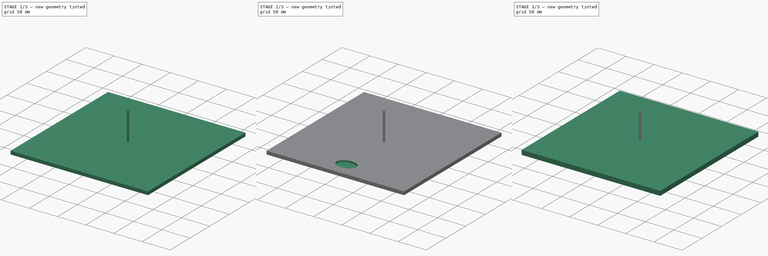
[diagram: build sequence overview — one tinted view per stage of 3, left to right]
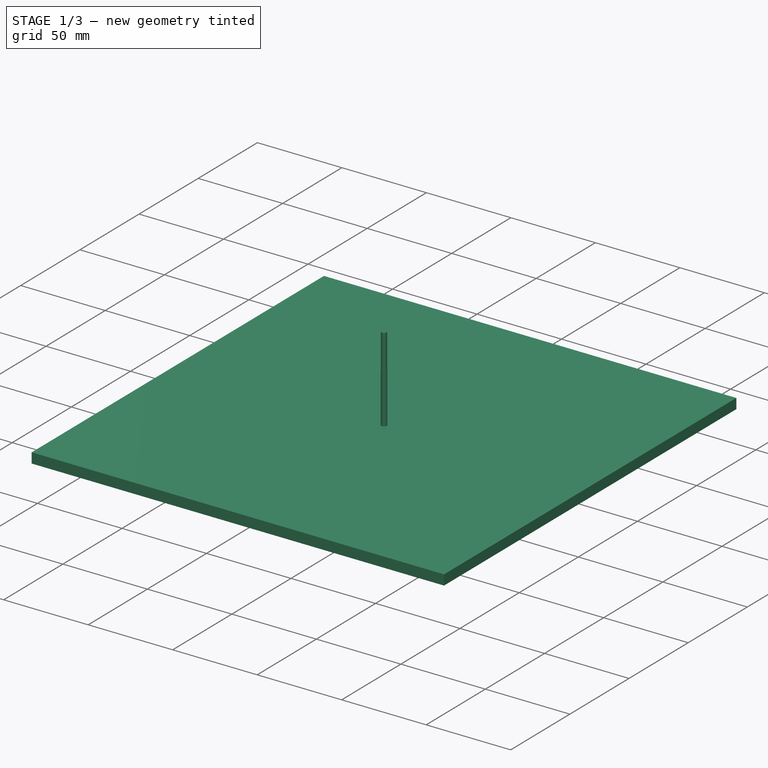
[diagram: stage 1 of 3 — iso view after this stage's code; geometry added in this stage tinted green]
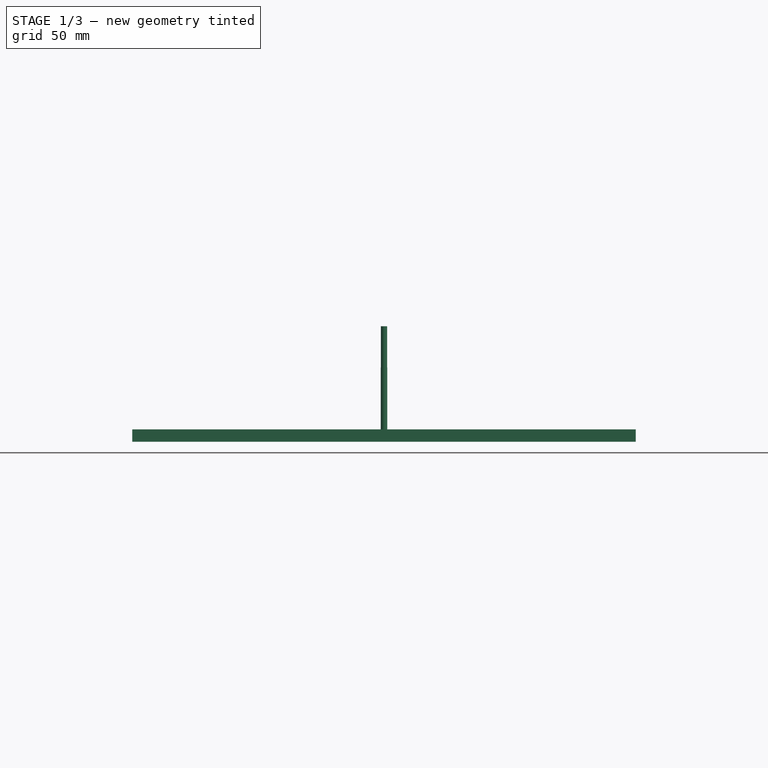
[diagram: stage 1 of 3 — front view after this stage's code; geometry added in this stage tinted green]
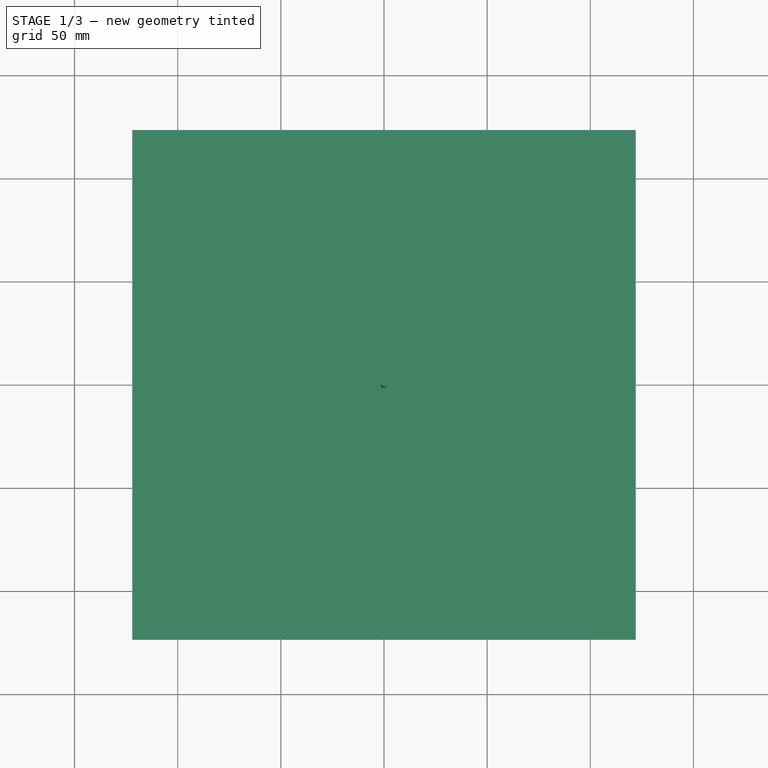
[diagram: stage 1 of 3 — top view after this stage's code; geometry added in this stage tinted green]
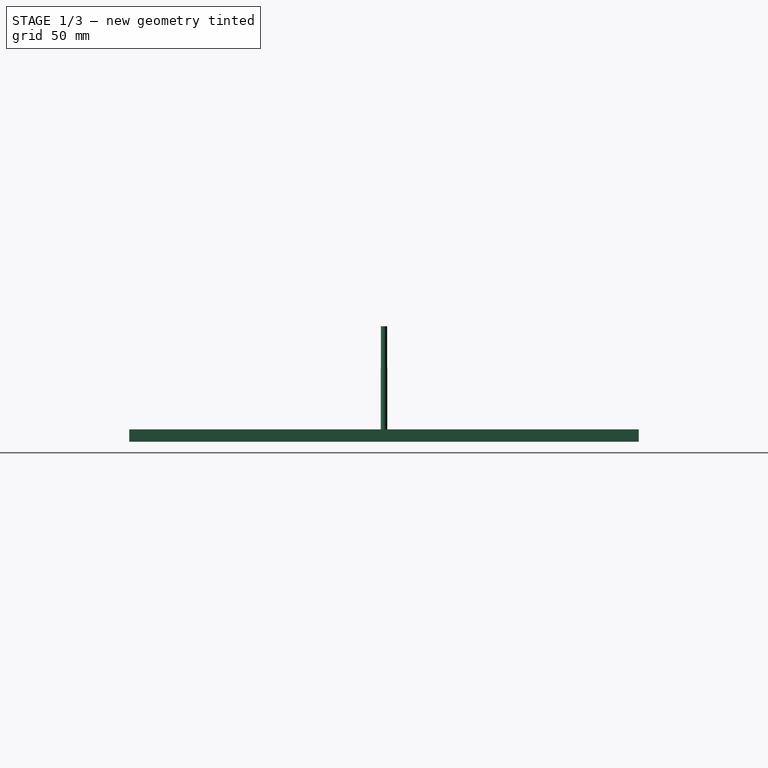
[diagram: stage 1 of 3 — right view after this stage's code; geometry added in this stage tinted green]
FCSTD DOCUMENT  (FreeCAD 0.20R29603 (Git))
Label: cutter_text
License: All rights reserved
LicenseURL: http://en.wikipedia.org/wiki/All_rights_reserved
objects: Path::FeaturePython×4, Part::FeaturePython×3, App::DocumentObjectGroup×3, Sketcher::SketchObject×2, Part::Part2DObjectPython×2, PartDesign::Pad×1, PartDesign::Pocket×1, PartDesign::Body×1, App::FeaturePython×1
note: 13 computed .brp shape members not serialized (recipe doc carries the construction recipe); baked Part::Feature solids carry a one-line shape summary decoded from their .brp

FEATURE [Sketcher::SketchObject] Sketch
  FullyConstrained = true
  MapMode = 5
  Support = -> [XY_Plane]
  sketch-geometry (4):
    g0: LineSegment StartX=-122 StartY=123.5 StartZ=0 EndX=122 EndY=123.5 EndZ=0
    g1: LineSegment StartX=122 StartY=123.5 StartZ=0 EndX=122 EndY=-123.5 EndZ=0
    g2: LineSegment StartX=122 StartY=-123.5 StartZ=0 EndX=-122 EndY=-123.5 EndZ=0
    g3: LineSegment StartX=-122 StartY=-123.5 StartZ=0 EndX=-122 EndY=123.5 EndZ=0
  constraints (11):
    c: Coincident(g0,g1)
    c: Coincident(g1,g2)
    c: Coincident(g2,g3)
    c: Coincident(g3,g0)
    c: Horizontal(g0)
    c: Horizontal(g2)
    c: Vertical(g1)
    c: Vertical(g3)
    c: DistanceX(g2,g2) = 244
    c: DistanceY(g1,g1) = 247
    c: Symmetric(g2,g0,g-1)
FEATURE [PartDesign::Pad] Pad
  Direction = (0,0,1)
  Length = 6
  Length2 = 10
  Profile = -> Sketch
  ReferenceAxis = -> Sketch [N_Axis]
  Reversed = true
  Type = 0
FEATURE [Part::FeaturePython] ToolBit002  label="3_175_enmill002"  # Path/CAM toolbit (typed FeaturePython)
  BitPropertyNames = Chipload | CuttingEdgeHeight | Diameter | Flutes | Length | Material | ShankDiameter | SpindleDirection
  BitShape = <userpath>/freecad_toolbit/Shape/endmill.fcstd
  Chipload = 0
  CuttingEdgeHeight = 30
  Diameter = 3.17
  File = <userpath>/freecad_toolbit/Bit/3_175_enmill.fctb
  Flutes = 0
  Length = 50
  Material = 0
  ShankDiameter = 3
  ShapeName = endmill
  SpindleDirection = 0
FEATURE [Path::FeaturePython] __175_enmill002  label="3_175_enmill003"  # Path/CAM operation (typed FeaturePython)
  HorizFeed = 13.3333
  HorizRapid = 0
  SpindleDir = 0
  SpindleSpeed = 24000
  Tool = -> ToolBit002
  ToolNumber = 2
  VertFeed = 8.33333
  VertRapid = 0
  expr: HorizRapid = SetupSheet001.HorizRapid
  expr: VertRapid = SetupSheet001.VertRapid
FEATURE [App::DocumentObjectGroup] Tools001
  Group = -> [__175_enmill002]
FEATURE [Path::FeaturePython] Pocket_Shape  # Path/CAM operation (typed FeaturePython)
  Active = true
  AreaParams:
    Tolerance = 1e-07
    FitArcs = True
    Simplify = False
    CleanDistance = 0.0
    Accuracy = 0.01
    Unit = 1.0
    MinArcPoints = 4
    MaxArcPoints = 100
    ClipperScale = 10000000.0
    Fill = 0
    Coplanar = 0
    Reorient = True
    Outline = False
    Explode = False
    OpenMode = 0
    Deflection = 0.01
    SubjectFill = 0
    ClipFill = 0
    Offset = 0.0
    ExtraPass = 0
    Stepover = 0.0
    LastStepover = 0.0
    JoinType = 0
    EndType = 0
    MiterLimit = 2.0
    RoundPrecision = 0.0
    PocketMode = 4
    ToolRadius = 1.585
    PocketExtraOffset = 0.0
    PocketStepover = 3.17
    PocketLastStepover = 0.0
    FromCenter = True
    Angle = 0.0
    AngleShift = 0.0
    Shift = 0.0
    Thicken = False
    SectionCount = -1
    Stepdown = 1.0
    SectionOffset = 0.0
    SectionTolerance = 1e-06
    SectionMode = 2
    Project = False
  Base = -> [Clone001]
  ClearanceHeight = 6
  CoolantMode = 0
  CutMode = 1
  CycleTime = 00:00:33
  ExtensionCorners = true
  ExtensionLengthDefault = 1.585
  ExtraOffset = 0
  FinalDepth = -3
  FinishDepth = 0
  KeepToolDown = false
  MinTravel = false
  OffsetPattern = 2
  OpFinalDepth = -3
  OpStartDepth = 1
  OpStockZMax = 1
  OpStockZMin = -7
  OpToolDiameter = 3.17
  PathParams = {'orientation': 0, 'feedrate': 13.333333333333334, 'feedrate_v': 8.333333333333334, 'verbose': True, 'resume_height': 4.0, 'retraction': 6.0, 'return_end': True, 'preamble': False}
  PocketLastStepOver = 0
  SafeHeight = 4
  SplitArcs = false
  StartAt = 0
  StartDepth = 0
  StartPoint = (0,0,0)
  StepDown = 3
  StepOver = 100
  ToolController = -> __175_enmill002
  UseOutline = false
  UseStartPoint = false
  ZigZagAngle = 0
  expr: ClearanceHeight = OpStockZMax + SetupSheet001.ClearanceHeightOffset
  expr: ExtensionLengthDefault = OpToolDiameter / 2
  expr: FinalDepth = OpFinalDepth
  expr: SafeHeight = OpStockZMax + SetupSheet001.SafeHeightOffset
  expr: StartDepth = 0
  expr: StepDown = 3
FEATURE [Path::FeaturePython] Engrave  # Path/CAM operation (typed FeaturePython)
  Active = true
  BaseShapes = -> [Clone2D]
  ClearanceHeight = 6
  CoolantMode = 0
  CycleTime = 00:01:10
  FinalDepth = -0.8
  OpFinalDepth = -3.17
  OpStartDepth = 0
  OpStockZMax = 1
  OpStockZMin = -7
  OpToolDiameter = 3.17
  SafeHeight = 4
  StartDepth = 0
  StartVertex = 0
  StepDown = 3.17
  ToolController = -> __175_enmill002
  expr: ClearanceHeight = OpStockZMax + SetupSheet001.ClearanceHeightOffset
  expr: FinalDepth = -0.8
  expr: SafeHeight = OpStockZMax + SetupSheet001.SafeHeightOffset
  expr: StartDepth = OpStartDepth
  expr: StepDown = OpToolDiameter
FEATURE [App::DocumentObjectGroup] Operations001
  Group = -> [Pocket_Shape,Engrave]
FEATURE [Path::FeaturePython] Job001  # Path/CAM operation (typed FeaturePython)
  CycleTime = 00:01:43
  Fixtures = G54
  GeometryTolerance = 0.01
  JobType = 0
  LastPostProcessDate = 2023-02-03 11:48:57.620574
  LastPostProcessOutput = <userpath>/0AF7-8871/cutter_text.nc
  Model = -> Model001
  Operations = -> Operations001
  OrderOutputBy = 0
  PostProcessor = 8
  SetupSheet = -> SetupSheet001
  SplitOutput = false
  Stock = -> Stock001
  Tools = -> Tools001
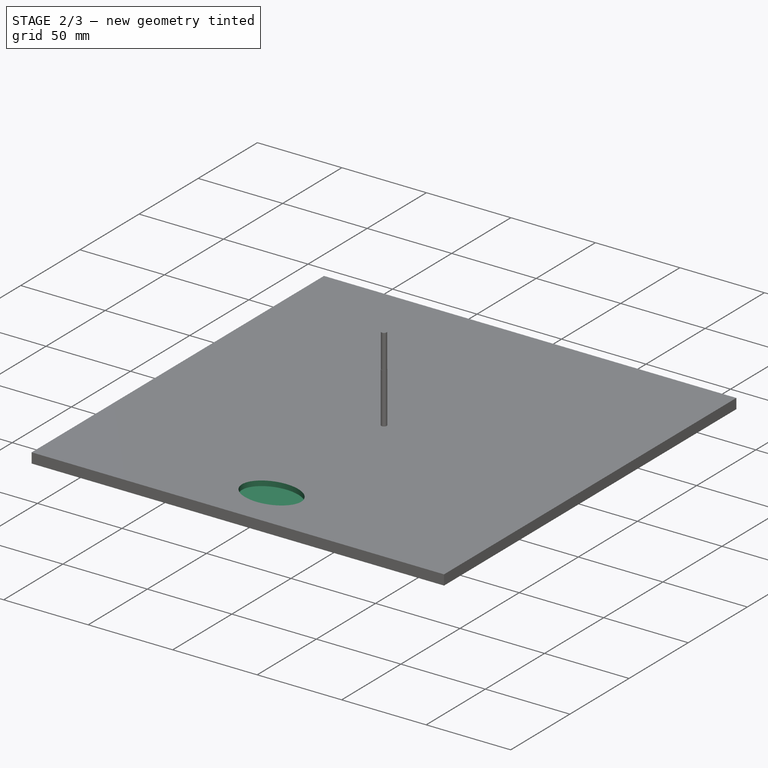
[diagram: stage 2 of 3 — iso view after this stage's code; geometry added in this stage tinted green]
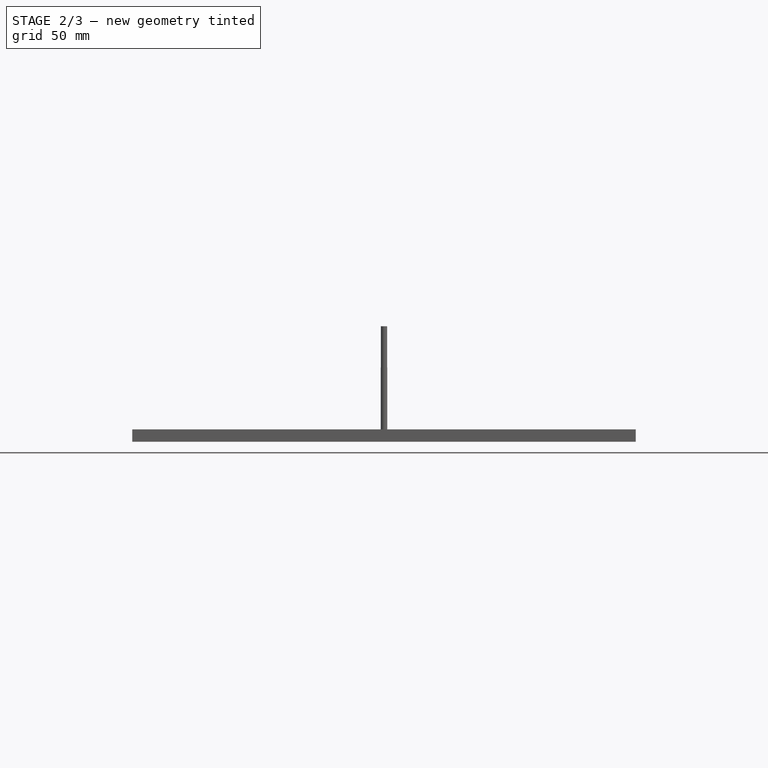
[diagram: stage 2 of 3 — front view after this stage's code; geometry added in this stage tinted green]
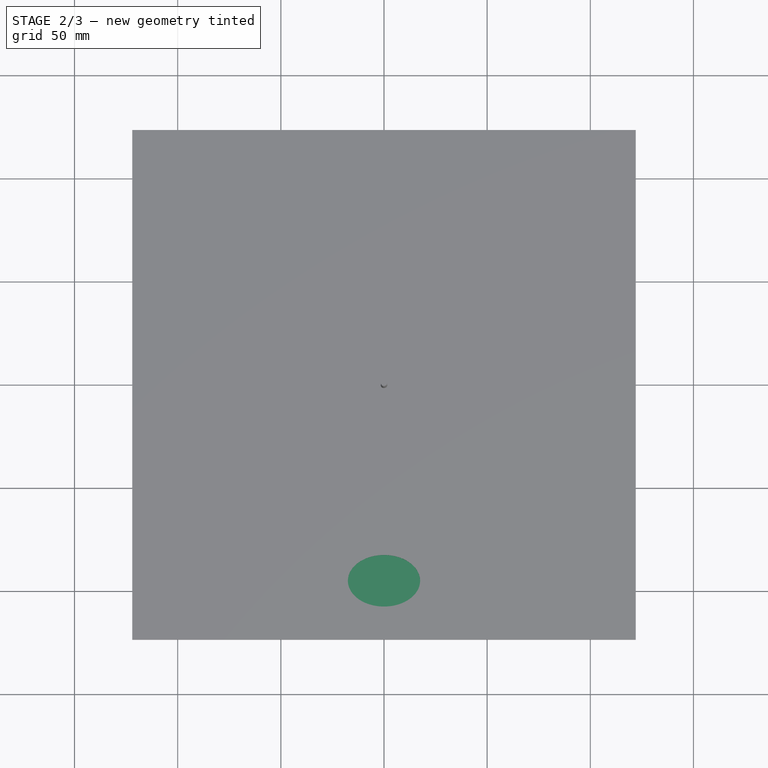
[diagram: stage 2 of 3 — top view after this stage's code; geometry added in this stage tinted green]
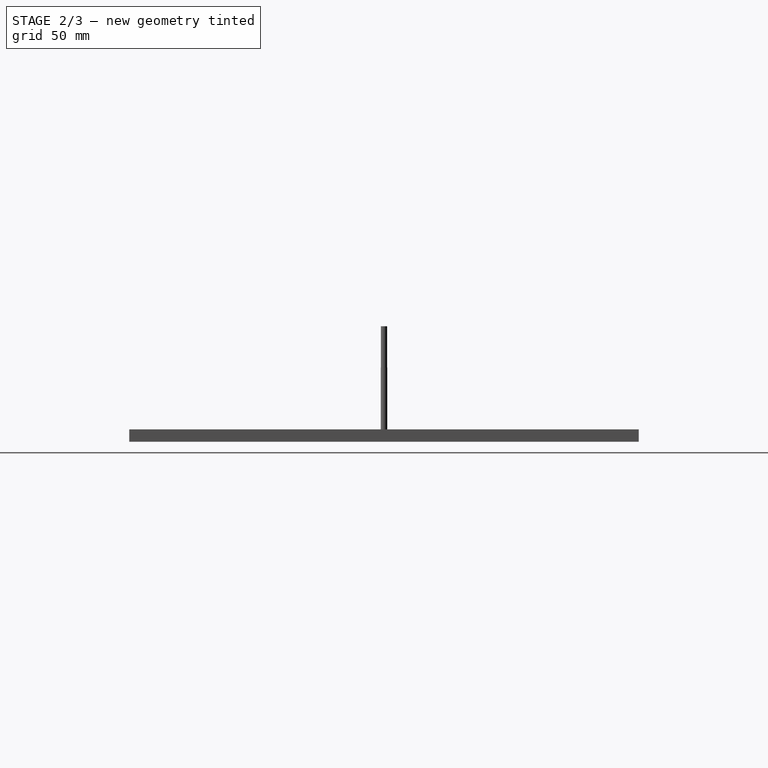
[diagram: stage 2 of 3 — right view after this stage's code; geometry added in this stage tinted green]
FEATURE [Part::Part2DObjectPython] ShapeString  # Draft 2D object (typed FeaturePython)
  FontFile = <userpath>/Downloads/CNC/fonts/Kramola.ttf
  MakeFace = true
  Placement = pos=(-52,-30,0) rot=(0,0,-1;0rad)
  Size = 25
  String = FPV
  Tracking = 5
FEATURE [Sketcher::SketchObject] Sketch001
  FullyConstrained = true
  MapMode = 5
  Support = -> [Pad]
  sketch-geometry (5):
    g0: Ellipse CenterX=0 CenterY=-95 CenterZ=0 NormalX=0 NormalY=0 NormalZ=1 MajorRadius=17.5 MinorRadius=12.5 AngleXU=2.251e-13
    g1: LineSegment StartX=17.5 StartY=-95 StartZ=0 EndX=-17.5 EndY=-95 EndZ=0
    g2: LineSegment StartX=2.6898e-12 StartY=-82.5 StartZ=0 EndX=-2.6898e-12 EndY=-107.5 EndZ=0
    g3: GeomPoint X=12.2474 Y=-95 Z=0
    g4: GeomPoint X=-12.2474 Y=-95 Z=0
  constraints (6):
    c: InternalAlignment(g1-g4 -> g0) x4
    c: PointOnObject(g0,g-2)
    c: Horizontal(g1)
    c: DistanceX(g1,g1) = 35
    c: DistanceY(g2,g2) = 25
    c: DistanceY(g0,g-1) = 95
FEATURE [PartDesign::Pocket] Pocket
  BaseFeature = -> Pad
  Direction = (0,0,-1)
  Length = 3
  Length2 = 5
  Profile = -> Sketch001
  ReferenceAxis = -> Sketch001 [N_Axis]
  Type = 0
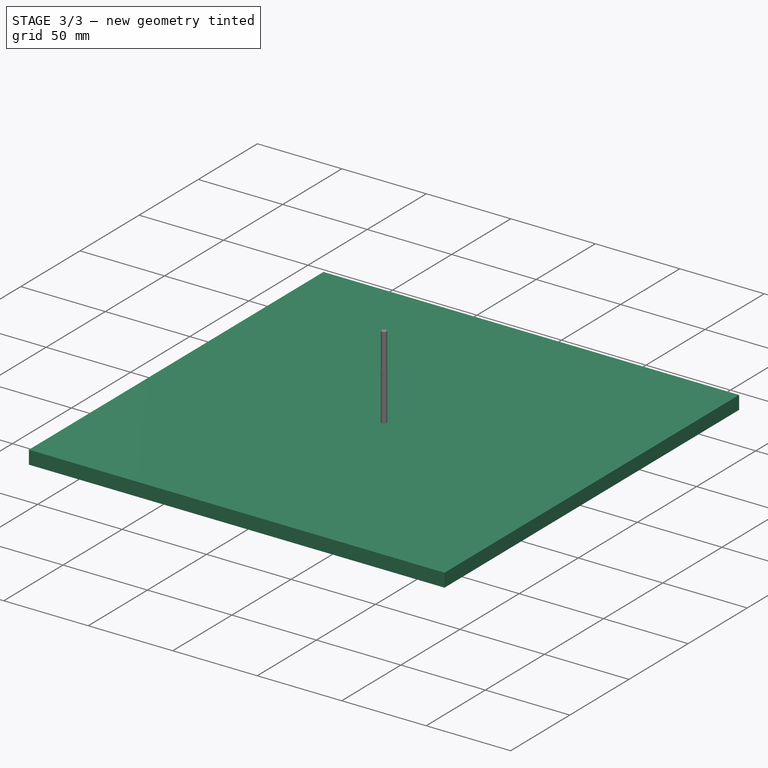
[diagram: stage 3 of 3 — iso view after this stage's code; geometry added in this stage tinted green]
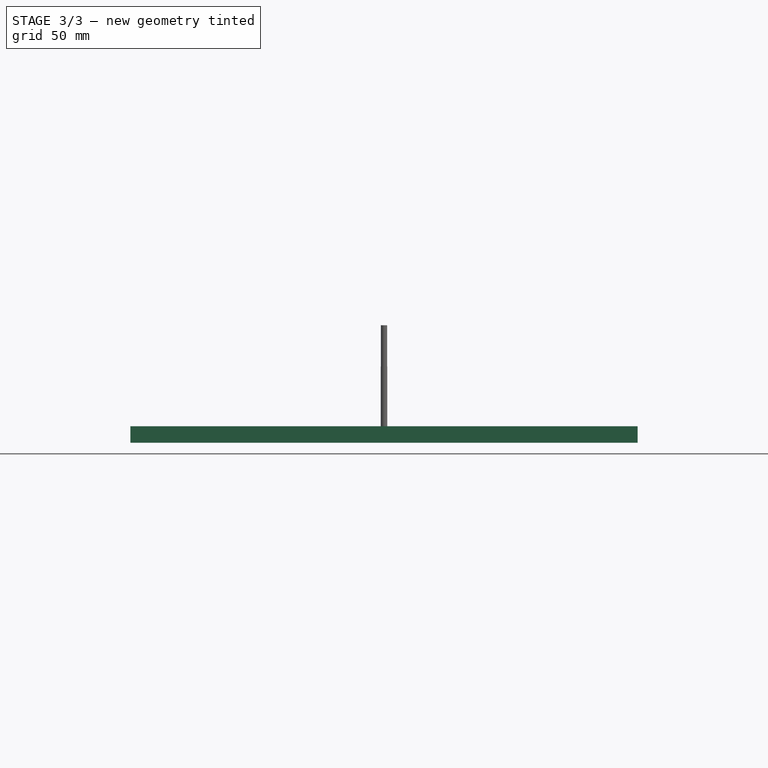
[diagram: stage 3 of 3 — front view after this stage's code; geometry added in this stage tinted green]
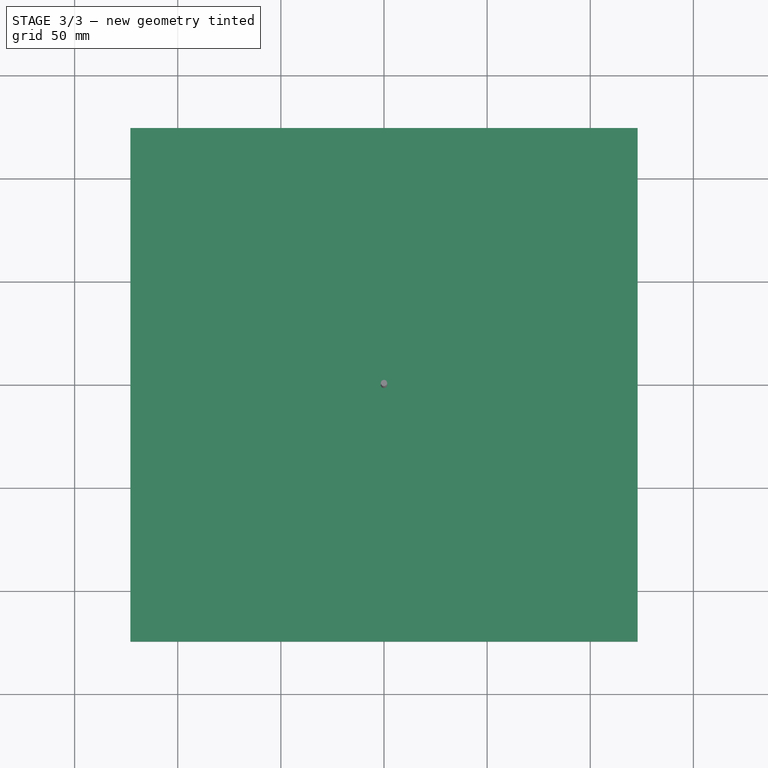
[diagram: stage 3 of 3 — top view after this stage's code; geometry added in this stage tinted green]
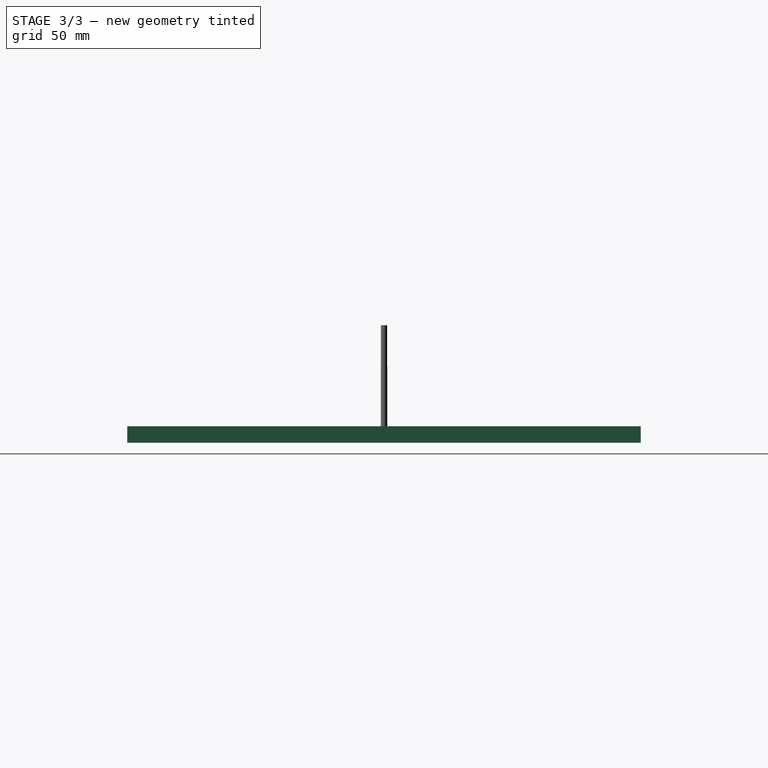
[diagram: stage 3 of 3 — right view after this stage's code; geometry added in this stage tinted green]
FEATURE [PartDesign::Body] Body
  Group = -> [Sketch,Pad,Sketch001,Pocket]
  Origin = -> Origin
  Tip = -> Pocket
FEATURE [App::FeaturePython] SetupSheet001  # Path/CAM operation (typed FeaturePython)
  ClearanceHeightExpression = OpStockZMax+SetupSheet001.ClearanceHeightOffset
  ClearanceHeightOffset = 5
  CoolantMode = 0
  CoolantModes = None | Flood | Mist
  FinalDepthExpression = OpFinalDepth
  HorizRapid = 0
  SafeHeightExpression = OpStockZMax+SetupSheet001.SafeHeightOffset
  SafeHeightOffset = 3
  StartDepthExpression = OpStartDepth
  StepDownExpression = OpToolDiameter
  VertRapid = 0
FEATURE [Part::FeaturePython] Clone001  label="Model-Body001"  # Draft clone (typed FeaturePython)
  AttacherType = Attacher::AttachEngine3D
  Fuse = false
  Objects = -> [Body]
  PathResource = Model
  Scale = (1,1,1)
FEATURE [Part::Part2DObjectPython] Clone2D  label="Model-ShapeString"  # Draft 2D object (typed FeaturePython)
  Fuse = false
  Objects = -> [ShapeString]
  PathResource = Model
  Placement = pos=(-52,-30,0) rot=(0,0,-1;0rad)
  Scale = (1,1,1)
FEATURE [App::DocumentObjectGroup] Model001
  Group = -> [Clone001,Clone2D]
FEATURE [Part::FeaturePython] Stock001  # WARN: FeaturePython — macro-defined, semantics opaque (R4)
  Base = -> Model001
  ExtXneg = 1
  ExtXpos = 1
  ExtYneg = 1
  ExtYpos = 1
  ExtZneg = 1
  ExtZpos = 1
  Placement = pos=(-122,-123.5,-6) rot=(0,0,1;0rad)
  StockType = FromBase
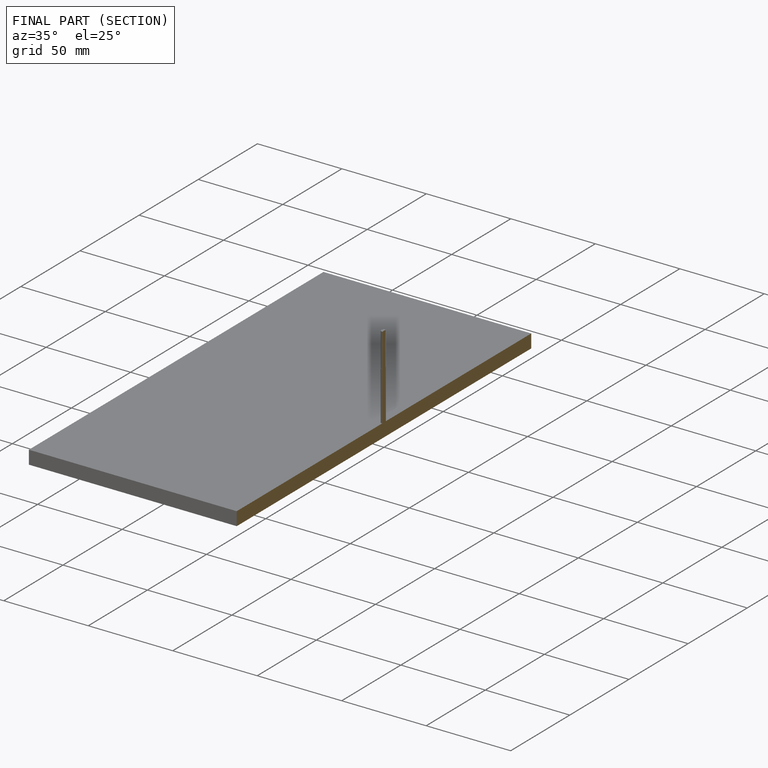
[diagram: finished part — half-section view (interior)]
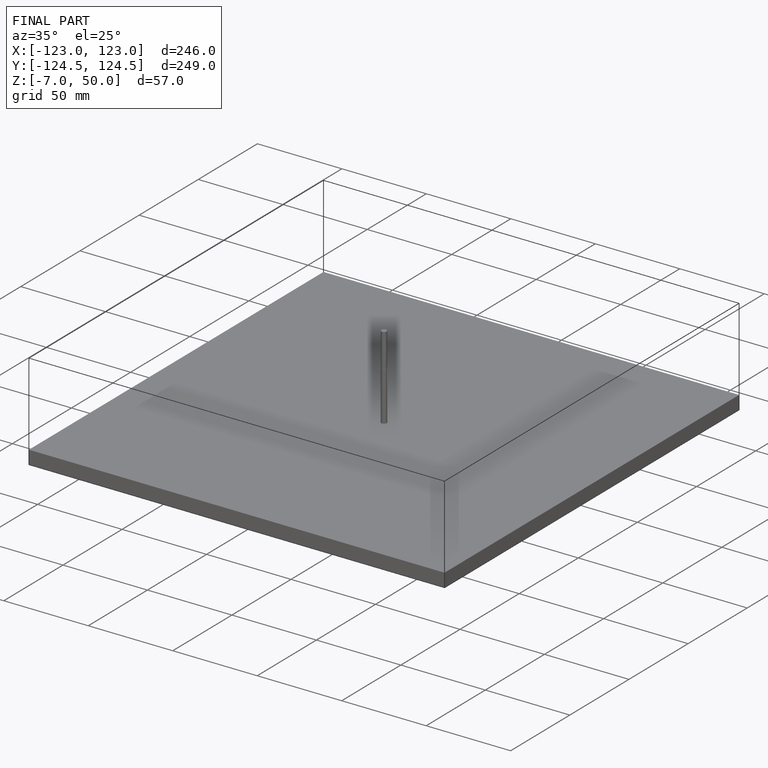
[diagram: finished part — iso view with bounding-box wireframe]
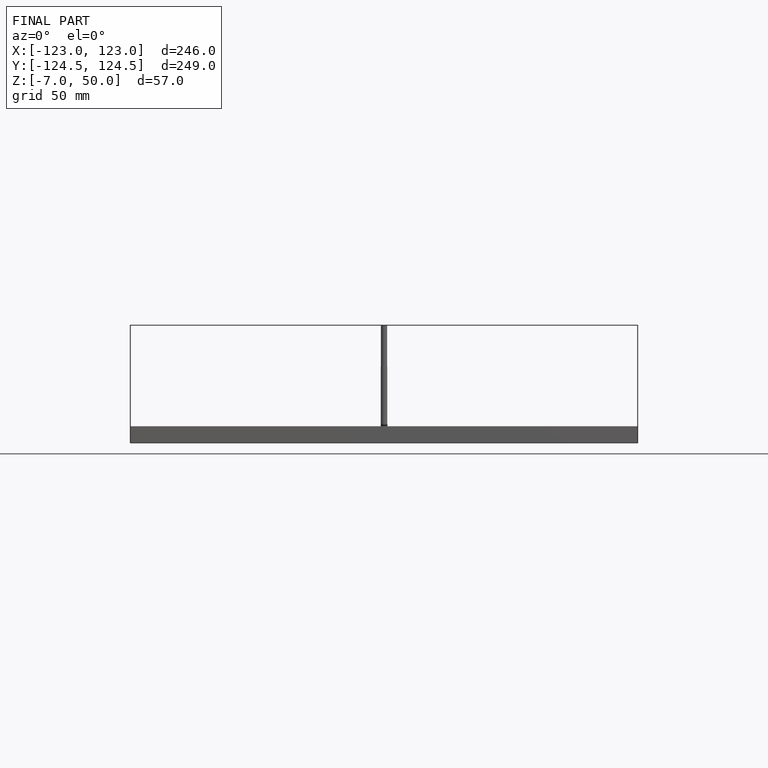
[diagram: finished part — front view with bounding-box wireframe]
